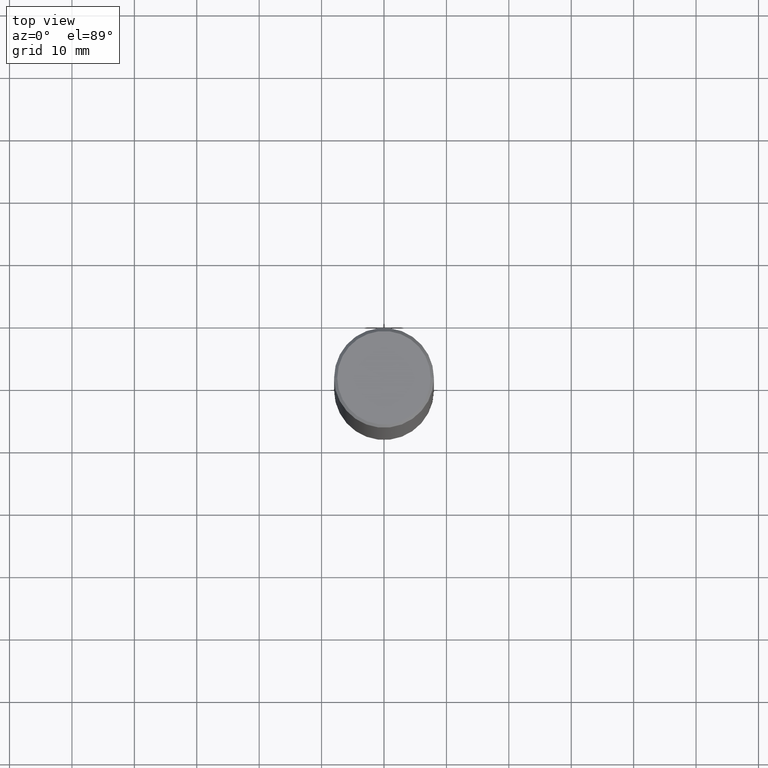
[diagram: clean part render]
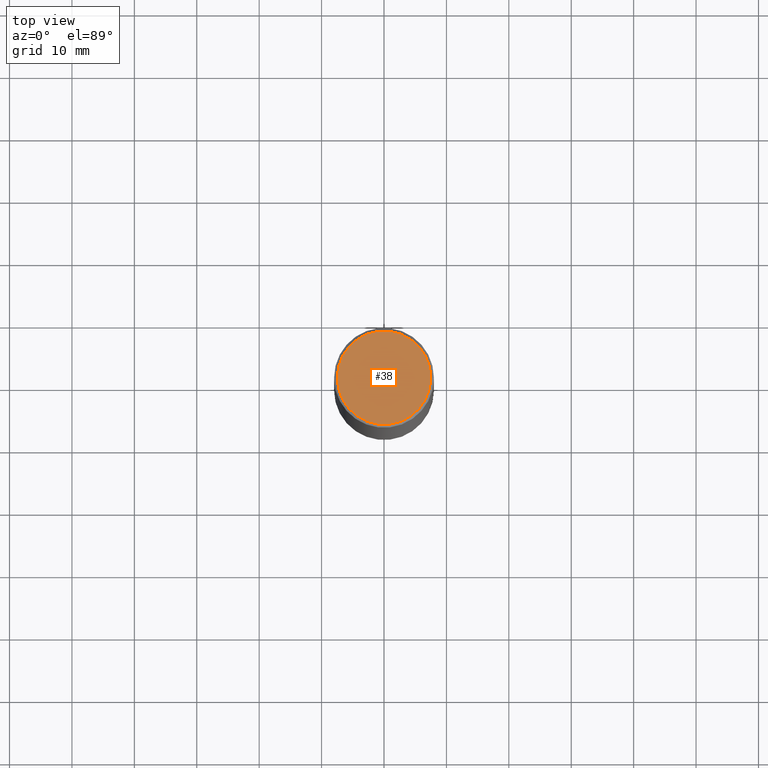
[diagram: same view with one face highlighted and labeled with its STEP entity id]
A machine part, top view. The second image highlights one B-rep face of the part: STEP entity #38.
In plain terms, the highlighted planar face has unit normal (0, -0, -1).
Its self-contained STEP definition (entity closure, byte-faithful):
#5 = EDGE_CURVE ( 'NONE', #123, #251, #336, .T. ) ;
#6 = CARTESIAN_POINT ( 'NONE',  ( 2.609628535838049452E-45, -3.725857925951117973E-31, -1.067128122525102851E-16 ) ) ;
#38 = ADVANCED_FACE ( 'NONE', ( #360 ), #315, .F. ) ;
#39 = DIRECTION ( 'NONE',  ( 2.438088387897960049E-29, -3.491481338843145188E-15, -1.000000000000000000 ) ) ;
#61 = CARTESIAN_POINT ( 'NONE',  ( 2.609628535838049452E-45, -3.725857925951117973E-31, -1.067128122525102851E-16 ) ) ;
#74 = AXIS2_PLACEMENT_3D ( 'NONE', #6, #257, #166 ) ;
#92 = DIRECTION ( 'NONE',  ( -2.445468806185136597E-29, 3.491481338843145583E-15, 1.000000000000000000 ) ) ;
#97 = AXIS2_PLACEMENT_3D ( 'NONE', #226, #39, #139 ) ;
#110 = CIRCLE ( 'NONE', #207, 0.2949499999999999345 ) ;
#116 = CARTESIAN_POINT ( 'NONE',  ( 0.2949499999999999345, -2.127023677808859680E-15, -1.067128122524956418E-16 ) ) ;
#123 = VERTEX_POINT ( 'NONE', #116 ) ;
#139 = DIRECTION ( 'NONE',  ( -1.000000000000000000, 6.982962677686265922E-15, -4.876176775795935793E-29 ) ) ;
#140 = EDGE_LOOP ( 'NONE', ( #390, #323 ) ) ;
#166 = DIRECTION ( 'NONE',  ( 1.000000000000000000, -6.982962677686267499E-15, 4.874125435057322753E-29 ) ) ;
#207 = AXIS2_PLACEMENT_3D ( 'NONE', #61, #92, #303 ) ;
#226 = CARTESIAN_POINT ( 'NONE',  ( 2.059624841783564063E-15, 0.2949499999999999345, -1.083168827018040718E-15 ) ) ;
#251 = VERTEX_POINT ( 'NONE', #399 ) ;
#252 = EDGE_CURVE ( 'NONE', #251, #123, #110, .T. ) ;
#257 = DIRECTION ( 'NONE',  ( -2.445468806185136597E-29, 3.491481338843145583E-15, 1.000000000000000000 ) ) ;
#303 = DIRECTION ( 'NONE',  ( 1.000000000000000000, -6.982962677686267499E-15, 4.874125435057322753E-29 ) ) ;
#315 = PLANE ( 'NONE',  #97 ) ;
#323 = ORIENTED_EDGE ( 'NONE', *, *, #5, .T. ) ;
#336 = CIRCLE ( 'NONE', #74, 0.2949499999999999345 ) ;
#360 = FACE_OUTER_BOUND ( 'NONE', #140, .T. ) ;
#390 = ORIENTED_EDGE ( 'NONE', *, *, #252, .T. ) ;
#399 = CARTESIAN_POINT ( 'NONE',  ( -0.2949499999999999345, 2.094539655171994924E-15, -1.067128122525248050E-16 ) ) ;